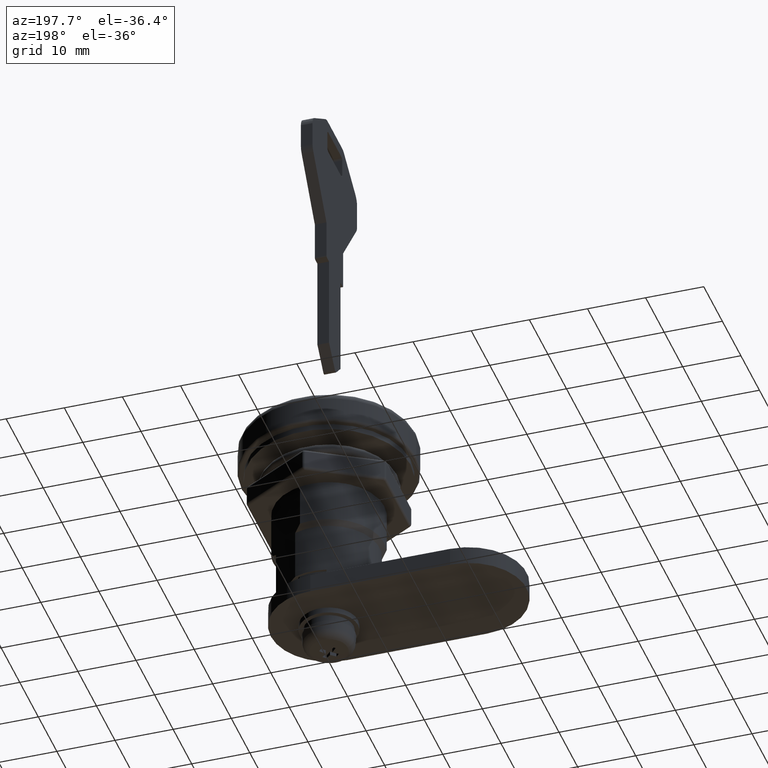
[diagram: clean part render]
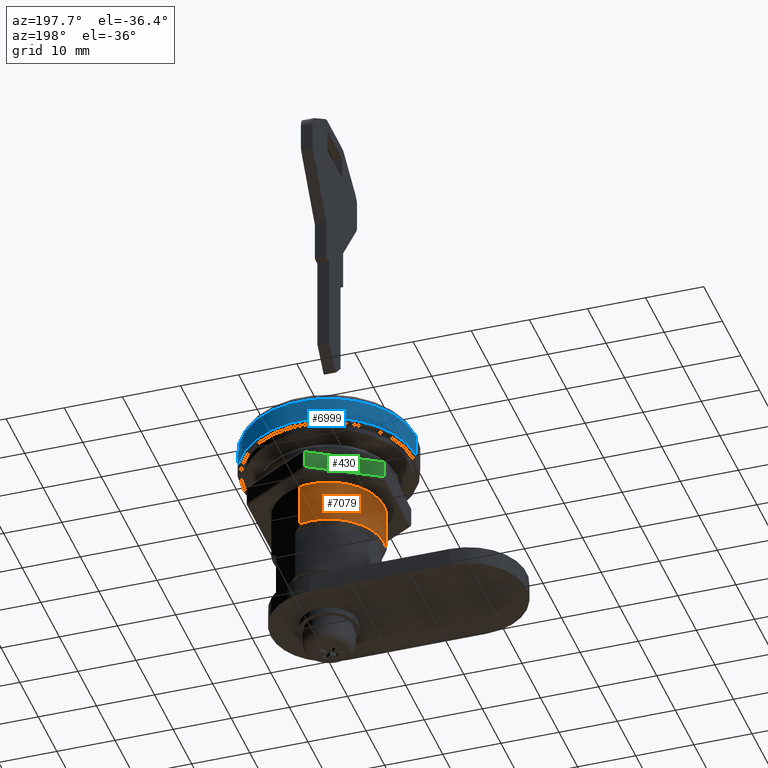
[diagram: same view with three faces highlighted in distinct colors, each labeled with its STEP entity id]
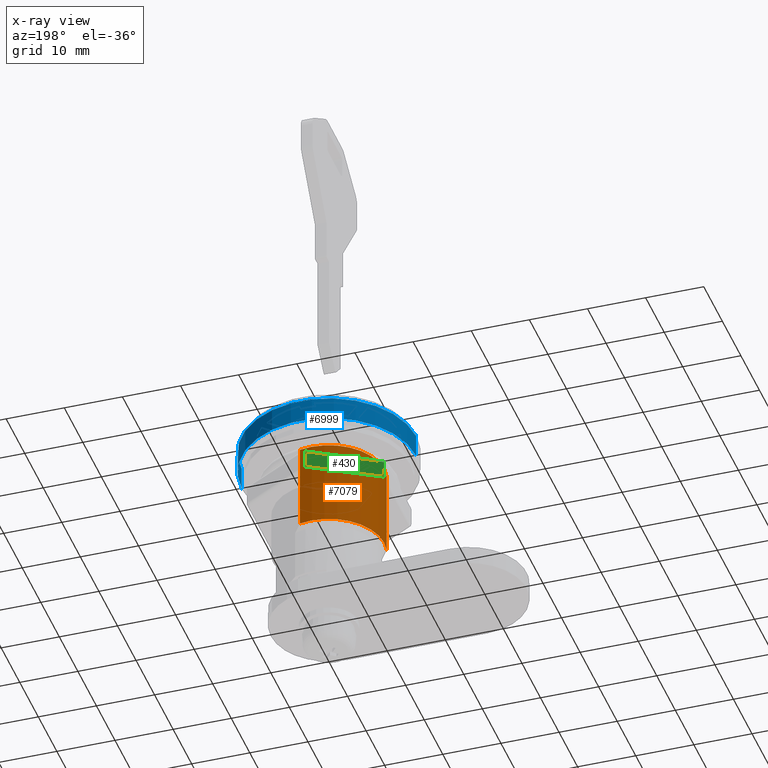
[diagram: x-ray of the same camera — body ghosted, the three highlighted faces saturated]
A machine part, auxiliary view with three faces highlighted in distinct colors.
The next image is the same camera in x-ray (body ghosted, the three faces saturated) — at least one of them is partly hidden behind the body in this view.
Their STEP definitions:

[orange] entity #7079 — the highlighted cylindrical surface (partial cylindrical patch) has radius 9.5 mm, axis along (0, 0, 1).
#130 = VERTEX_POINT ( 'NONE', #3259 ) ;
#193 = DIRECTION ( 'NONE',  ( 0.0000000000000000000, 0.0000000000000000000, -1.000000000000000000 ) ) ;
#414 = VECTOR ( 'NONE', #5231, 1000.000000000000000 ) ;
#837 = CIRCLE ( 'NONE', #6572, 9.500000000000000000 ) ;
#1247 = ORIENTED_EDGE ( 'NONE', *, *, #6523, .T. ) ;
#1622 = ORIENTED_EDGE ( 'NONE', *, *, #4184, .F. ) ;
#1677 = ORIENTED_EDGE ( 'NONE', *, *, #3346, .T. ) ;
#2111 = LINE ( 'NONE', #7115, #414 ) ;
#2383 = CARTESIAN_POINT ( 'NONE',  ( 2.034010062945017100, 9.279698436039741000, -21.99999999999999600 ) ) ;
#2401 = ORIENTED_EDGE ( 'NONE', *, *, #3195, .T. ) ;
#2453 = FACE_OUTER_BOUND ( 'NONE', #6797, .T. ) ;
#2824 = VECTOR ( 'NONE', #6820, 1000.000000000000000 ) ;
#2941 = CARTESIAN_POINT ( 'NONE',  ( 0.0000000000000000000, 0.0000000000000000000, -22.80000000000000100 ) ) ;
#3021 = AXIS2_PLACEMENT_3D ( 'NONE', #3637, #8097, #4302 ) ;
#3195 = EDGE_CURVE ( 'NONE', #7651, #8229, #837, .T. ) ;
#3259 = CARTESIAN_POINT ( 'NONE',  ( -9.279698436039719700, -2.034010062945113400, -21.99999999999999600 ) ) ;
#3346 = EDGE_CURVE ( 'NONE', #130, #7651, #4553, .T. ) ;
#3637 = CARTESIAN_POINT ( 'NONE',  ( 0.0000000000000000000, 0.0000000000000000000, -21.99999999999999600 ) ) ;
#3906 = VERTEX_POINT ( 'NONE', #2383 ) ;
#3975 = CYLINDRICAL_SURFACE ( 'NONE', #8277, 9.500000000000000000 ) ;
#4046 = CARTESIAN_POINT ( 'NONE',  ( 0.0000000000000000000, 0.0000000000000000000, -7.000000000000000000 ) ) ;
#4184 = EDGE_CURVE ( 'NONE', #3906, #8229, #2111, .T. ) ;
#4228 = CARTESIAN_POINT ( 'NONE',  ( -9.279698436039721400, -2.034010062945113900, -7.000000000000000000 ) ) ;
#4302 = DIRECTION ( 'NONE',  ( -1.000000000000000000, 0.0000000000000000000, 0.0000000000000000000 ) ) ;
#4553 = LINE ( 'NONE', #8040, #2824 ) ;
#4698 = DIRECTION ( 'NONE',  ( -1.000000000000000000, 0.0000000000000000000, 0.0000000000000000000 ) ) ;
#5231 = DIRECTION ( 'NONE',  ( -0.0000000000000000000, -0.0000000000000000000, 1.000000000000000000 ) ) ;
#6523 = EDGE_CURVE ( 'NONE', #3906, #130, #6901, .T. ) ;
#6572 = AXIS2_PLACEMENT_3D ( 'NONE', #4046, #193, #4698 ) ;
#6797 = EDGE_LOOP ( 'NONE', ( #1247, #1677, #2401, #1622 ) ) ;
#6804 = DIRECTION ( 'NONE',  ( -0.0000000000000000000, -0.0000000000000000000, 1.000000000000000000 ) ) ;
#6820 = DIRECTION ( 'NONE',  ( -0.0000000000000000000, -0.0000000000000000000, 1.000000000000000000 ) ) ;
#6901 = CIRCLE ( 'NONE', #3021, 9.500000000000000000 ) ;
#7079 = ADVANCED_FACE ( 'NONE', ( #2453 ), #3975, .T. ) ;
#7115 = CARTESIAN_POINT ( 'NONE',  ( 2.034010062945018800, 9.279698436039742800, -22.80000000000000100 ) ) ;
#7431 = DIRECTION ( 'NONE',  ( 1.000000000000000000, 0.0000000000000000000, 0.0000000000000000000 ) ) ;
#7651 = VERTEX_POINT ( 'NONE', #4228 ) ;
#7703 = CARTESIAN_POINT ( 'NONE',  ( 2.034010062945015700, 9.279698436039741000, -6.999999999999999100 ) ) ;
#8040 = CARTESIAN_POINT ( 'NONE',  ( -9.279698436039719700, -2.034010062945112600, -22.80000000000000100 ) ) ;
#8097 = DIRECTION ( 'NONE',  ( 0.0000000000000000000, 0.0000000000000000000, 1.000000000000000000 ) ) ;
#8229 = VERTEX_POINT ( 'NONE', #7703 ) ;
#8277 = AXIS2_PLACEMENT_3D ( 'NONE', #2941, #6804, #7431 ) ;

[blue] entity #6999 — the highlighted cylindrical surface (partial cylindrical patch) has radius 15 mm, axis along (0, 0, 1).
#63 = VERTEX_POINT ( 'NONE', #1219 ) ;
#314 = ORIENTED_EDGE ( 'NONE', *, *, #7379, .T. ) ;
#653 = LINE ( 'NONE', #5215, #6877 ) ;
#765 = VECTOR ( 'NONE', #4093, 1000.000000000000000 ) ;
#1045 = VERTEX_POINT ( 'NONE', #3765 ) ;
#1070 = CARTESIAN_POINT ( 'NONE',  ( 0.0000000000000000000, 0.0000000000000000000, -5.500000000000000000 ) ) ;
#1202 = EDGE_CURVE ( 'NONE', #3533, #63, #5697, .T. ) ;
#1219 = CARTESIAN_POINT ( 'NONE',  ( 15.00000000000000000, 0.0000000000000000000, -1.499999999999999600 ) ) ;
#1222 = CARTESIAN_POINT ( 'NONE',  ( 15.00000000000000000, 0.0000000000000000000, -5.500000000000000000 ) ) ;
#1311 = AXIS2_PLACEMENT_3D ( 'NONE', #1070, #5560, #1708 ) ;
#1708 = DIRECTION ( 'NONE',  ( 1.000000000000000000, 0.0000000000000000000, 0.0000000000000000000 ) ) ;
#1767 = CIRCLE ( 'NONE', #1311, 15.00000000000000000 ) ;
#1970 = EDGE_LOOP ( 'NONE', ( #7467, #314, #4196, #3670 ) ) ;
#2225 = DIRECTION ( 'NONE',  ( 1.000000000000000000, 0.0000000000000000000, 0.0000000000000000000 ) ) ;
#3227 = CIRCLE ( 'NONE', #4283, 15.00000000000000000 ) ;
#3294 = EDGE_CURVE ( 'NONE', #1045, #63, #3227, .T. ) ;
#3494 = CARTESIAN_POINT ( 'NONE',  ( 0.0000000000000000000, 0.0000000000000000000, -6.000000000000000000 ) ) ;
#3532 = CARTESIAN_POINT ( 'NONE',  ( 0.0000000000000000000, 0.0000000000000000000, -1.499999999999999600 ) ) ;
#3533 = VERTEX_POINT ( 'NONE', #1222 ) ;
#3670 = ORIENTED_EDGE ( 'NONE', *, *, #1202, .F. ) ;
#3765 = CARTESIAN_POINT ( 'NONE',  ( -15.00000000000000000, 1.836970198721029600E-015, -1.499999999999999600 ) ) ;
#3844 = CARTESIAN_POINT ( 'NONE',  ( -15.00000000000000000, 1.836970198721029600E-015, -5.500000000000000000 ) ) ;
#4093 = DIRECTION ( 'NONE',  ( 0.0000000000000000000, 0.0000000000000000000, 1.000000000000000000 ) ) ;
#4192 = DIRECTION ( 'NONE',  ( 1.000000000000000000, 0.0000000000000000000, 0.0000000000000000000 ) ) ;
#4196 = ORIENTED_EDGE ( 'NONE', *, *, #3294, .T. ) ;
#4283 = AXIS2_PLACEMENT_3D ( 'NONE', #3532, #7993, #4192 ) ;
#4585 = CYLINDRICAL_SURFACE ( 'NONE', #6156, 15.00000000000000000 ) ;
#5026 = VERTEX_POINT ( 'NONE', #3844 ) ;
#5215 = CARTESIAN_POINT ( 'NONE',  ( -15.00000000000000000, 1.836970198721029600E-015, -6.000000000000000000 ) ) ;
#5560 = DIRECTION ( 'NONE',  ( 0.0000000000000000000, 0.0000000000000000000, 1.000000000000000000 ) ) ;
#5697 = LINE ( 'NONE', #8001, #765 ) ;
#6077 = DIRECTION ( 'NONE',  ( 0.0000000000000000000, 0.0000000000000000000, 1.000000000000000000 ) ) ;
#6156 = AXIS2_PLACEMENT_3D ( 'NONE', #3494, #6077, #2225 ) ;
#6476 = FACE_OUTER_BOUND ( 'NONE', #1970, .T. ) ;
#6517 = EDGE_CURVE ( 'NONE', #3533, #5026, #1767, .T. ) ;
#6877 = VECTOR ( 'NONE', #7744, 1000.000000000000000 ) ;
#6999 = ADVANCED_FACE ( 'NONE', ( #6476 ), #4585, .T. ) ;
#7379 = EDGE_CURVE ( 'NONE', #5026, #1045, #653, .T. ) ;
#7467 = ORIENTED_EDGE ( 'NONE', *, *, #6517, .T. ) ;
#7744 = DIRECTION ( 'NONE',  ( 0.0000000000000000000, 0.0000000000000000000, 1.000000000000000000 ) ) ;
#7993 = DIRECTION ( 'NONE',  ( -0.0000000000000000000, -0.0000000000000000000, -1.000000000000000000 ) ) ;
#8001 = CARTESIAN_POINT ( 'NONE',  ( 15.00000000000000000, 0.0000000000000000000, -6.000000000000000000 ) ) ;

[green] entity #430 — the highlighted planar face has unit normal (-0.5, 0.866, 0).
#53 = LINE ( 'NONE', #3086, #6703 ) ;
#179 = VERTEX_POINT ( 'NONE', #3212 ) ;
#300 = VECTOR ( 'NONE', #1025, 1000.000000000000000 ) ;
#326 = CARTESIAN_POINT ( 'NONE',  ( -11.74999999999999300, 7.072540797572923300, -3.500000000000000000 ) ) ;
#345 = DIRECTION ( 'NONE',  ( -0.8660254037844380400, -0.5000000000000011100, 0.0000000000000000000 ) ) ;
#430 = ADVANCED_FACE ( 'NONE', ( #2779 ), #4179, .T. ) ;
#485 = LINE ( 'NONE', #2390, #6913 ) ;
#1025 = DIRECTION ( 'NONE',  ( 0.0000000000000000000, 0.0000000000000000000, 1.000000000000000000 ) ) ;
#1057 = EDGE_CURVE ( 'NONE', #3734, #179, #53, .T. ) ;
#1384 = ORIENTED_EDGE ( 'NONE', *, *, #4830, .T. ) ;
#2390 = CARTESIAN_POINT ( 'NONE',  ( -0.2499999999999969700, 13.71206889325363500, -4.000000000000000000 ) ) ;
#2779 = FACE_OUTER_BOUND ( 'NONE', #3032, .T. ) ;
#2830 = CARTESIAN_POINT ( 'NONE',  ( -0.2499999999999969700, 13.71206889325363500, -3.500000000000000000 ) ) ;
#2894 = ORIENTED_EDGE ( 'NONE', *, *, #6059, .T. ) ;
#2903 = ORIENTED_EDGE ( 'NONE', *, *, #1057, .T. ) ;
#3032 = EDGE_LOOP ( 'NONE', ( #6004, #1384, #2903, #2894 ) ) ;
#3086 = CARTESIAN_POINT ( 'NONE',  ( 4.917472796924811200E-015, 13.85640646055104400, -0.5000000000000000000 ) ) ;
#3113 = CARTESIAN_POINT ( 'NONE',  ( -11.99999999999999600, 6.928203230275514100, -3.500000000000000000 ) ) ;
#3212 = CARTESIAN_POINT ( 'NONE',  ( -0.2499999999999969700, 13.71206889325363500, -0.5000000000000000000 ) ) ;
#3339 = VECTOR ( 'NONE', #6972, 1000.000000000000100 ) ;
#3549 = CARTESIAN_POINT ( 'NONE',  ( 4.917472796924811200E-015, 13.85640646055104400, -4.000000000000000000 ) ) ;
#3734 = VERTEX_POINT ( 'NONE', #6065 ) ;
#3774 = VERTEX_POINT ( 'NONE', #326 ) ;
#4179 = PLANE ( 'NONE',  #4922 ) ;
#4214 = DIRECTION ( 'NONE',  ( -0.5000000000000011100, 0.8660254037844380400, 0.0000000000000000000 ) ) ;
#4349 = DIRECTION ( 'NONE',  ( -0.0000000000000000000, -0.0000000000000000000, -1.000000000000000000 ) ) ;
#4830 = EDGE_CURVE ( 'NONE', #3774, #3734, #5437, .T. ) ;
#4878 = CARTESIAN_POINT ( 'NONE',  ( -11.74999999999999500, 7.072540797572922400, -4.000000000000000000 ) ) ;
#4922 = AXIS2_PLACEMENT_3D ( 'NONE', #3549, #4214, #345 ) ;
#5437 = LINE ( 'NONE', #4878, #300 ) ;
#6004 = ORIENTED_EDGE ( 'NONE', *, *, #8107, .T. ) ;
#6059 = EDGE_CURVE ( 'NONE', #179, #6967, #485, .T. ) ;
#6065 = CARTESIAN_POINT ( 'NONE',  ( -11.74999999999999300, 7.072540797572923300, -0.5000000000000000000 ) ) ;
#6177 = DIRECTION ( 'NONE',  ( 0.8660254037844380400, 0.5000000000000011100, -0.0000000000000000000 ) ) ;
#6703 = VECTOR ( 'NONE', #6177, 1000.000000000000100 ) ;
#6913 = VECTOR ( 'NONE', #4349, 1000.000000000000000 ) ;
#6967 = VERTEX_POINT ( 'NONE', #2830 ) ;
#6972 = DIRECTION ( 'NONE',  ( -0.8660254037844380400, -0.5000000000000011100, 0.0000000000000000000 ) ) ;
#8034 = LINE ( 'NONE', #3113, #3339 ) ;
#8107 = EDGE_CURVE ( 'NONE', #6967, #3774, #8034, .T. ) ;